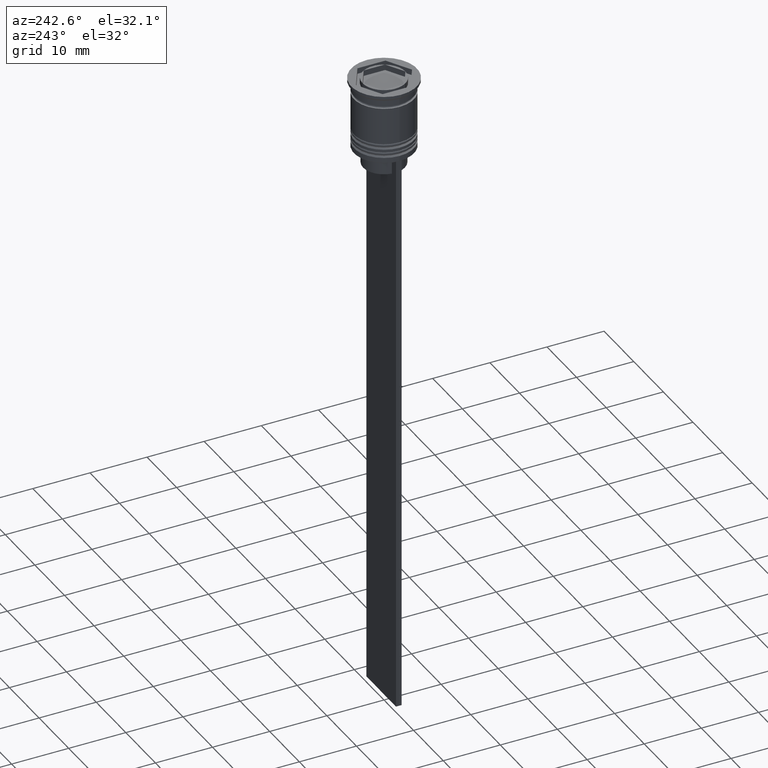
[diagram: clean part render]
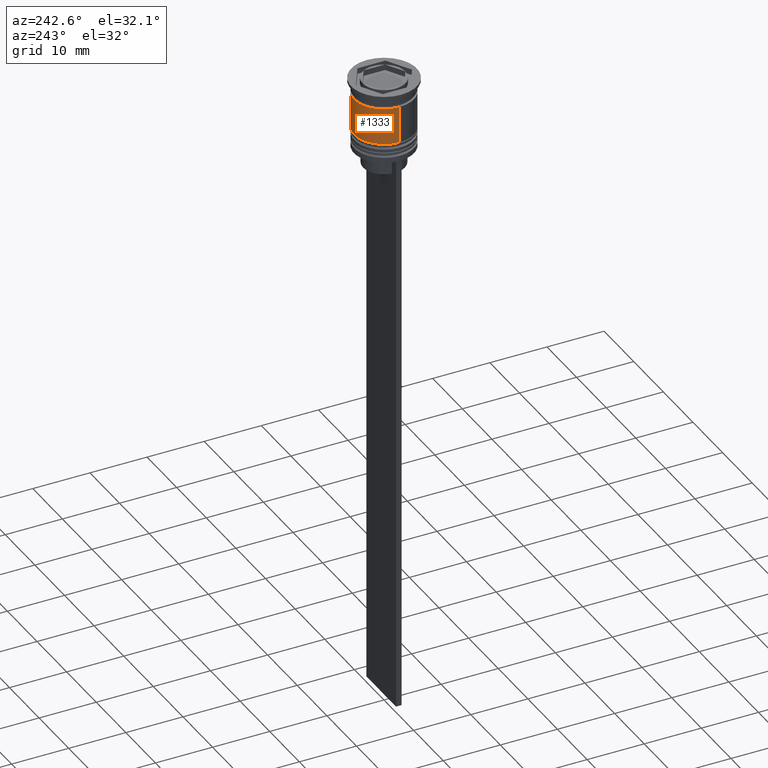
[diagram: same view with one face highlighted and labeled with its STEP entity id]
A machine part, auxiliary view. The second image highlights one B-rep face of the part: STEP entity #1333.
In plain terms, the highlighted cylindrical surface (edge-blend (fillet) strip) has radius 5.25 mm, axis along (-0, -0, 1).
Its self-contained STEP definition (entity closure, byte-faithful):
#67 = CARTESIAN_POINT ( 'NONE',  ( 0.000000000000000000, 0.000000000000000000, -9.000000000000001776 ) ) ;
#84 = VECTOR ( 'NONE', #175, 1000.000000000000000 ) ;
#88 = ORIENTED_EDGE ( 'NONE', *, *, #448, .F. ) ;
#175 = DIRECTION ( 'NONE',  ( -0.000000000000000000, -0.000000000000000000, 1.000000000000000000 ) ) ;
#448 = EDGE_CURVE ( 'NONE', #2085, #1893, #660, .T. ) ;
#492 = DIRECTION ( 'NONE',  ( -0.000000000000000000, -0.000000000000000000, 1.000000000000000000 ) ) ;
#521 = CARTESIAN_POINT ( 'NONE',  ( 0.000000000000000000, 0.000000000000000000, 0.000000000000000000 ) ) ;
#529 = FACE_OUTER_BOUND ( 'NONE', #747, .T. ) ;
#660 = LINE ( 'NONE', #825, #2327 ) ;
#663 = CARTESIAN_POINT ( 'NONE',  ( -5.249999999999999112, 6.429395695523604153E-16, -2.499999999999999556 ) ) ;
#664 = CARTESIAN_POINT ( 'NONE',  ( -5.250000000000000888, 6.429395695523605139E-16, -9.000000000000001776 ) ) ;
#686 = CARTESIAN_POINT ( 'NONE',  ( -5.250000000000000000, 6.429395695523604153E-16, 0.000000000000000000 ) ) ;
#747 = EDGE_LOOP ( 'NONE', ( #1536, #2222, #948, #88 ) ) ;
#825 = CARTESIAN_POINT ( 'NONE',  ( 5.250000000000000000, 0.000000000000000000, 0.000000000000000000 ) ) ;
#948 = ORIENTED_EDGE ( 'NONE', *, *, #1573, .F. ) ;
#992 = CIRCLE ( 'NONE', #1630, 5.250000000000000888 ) ;
#1117 = EDGE_CURVE ( 'NONE', #2085, #1384, #992, .T. ) ;
#1234 = CARTESIAN_POINT ( 'NONE',  ( 5.249999999999999112, 0.000000000000000000, -2.499999999999999556 ) ) ;
#1329 = EDGE_CURVE ( 'NONE', #1384, #1816, #1802, .T. ) ;
#1333 = ADVANCED_FACE ( 'NONE', ( #529 ), #1976, .T. ) ;
#1384 = VERTEX_POINT ( 'NONE', #664 ) ;
#1386 = CARTESIAN_POINT ( 'NONE',  ( 5.250000000000000888, 0.000000000000000000, -9.000000000000001776 ) ) ;
#1416 = DIRECTION ( 'NONE',  ( 1.000000000000000000, 0.000000000000000000, 0.000000000000000000 ) ) ;
#1450 = DIRECTION ( 'NONE',  ( 1.000000000000000000, 0.000000000000000000, 0.000000000000000000 ) ) ;
#1536 = ORIENTED_EDGE ( 'NONE', *, *, #1117, .T. ) ;
#1573 = EDGE_CURVE ( 'NONE', #1893, #1816, #2210, .T. ) ;
#1586 = DIRECTION ( 'NONE',  ( -0.000000000000000000, -0.000000000000000000, 1.000000000000000000 ) ) ;
#1630 = AXIS2_PLACEMENT_3D ( 'NONE', #67, #1840, #1450 ) ;
#1712 = AXIS2_PLACEMENT_3D ( 'NONE', #521, #1586, #1416 ) ;
#1802 = LINE ( 'NONE', #686, #84 ) ;
#1816 = VERTEX_POINT ( 'NONE', #663 ) ;
#1840 = DIRECTION ( 'NONE',  ( -0.000000000000000000, -0.000000000000000000, 1.000000000000000000 ) ) ;
#1893 = VERTEX_POINT ( 'NONE', #1234 ) ;
#1976 = CYLINDRICAL_SURFACE ( 'NONE', #1712, 5.250000000000000000 ) ;
#2031 = DIRECTION ( 'NONE',  ( -0.000000000000000000, -0.000000000000000000, 1.000000000000000000 ) ) ;
#2049 = DIRECTION ( 'NONE',  ( 1.000000000000000000, 0.000000000000000000, 0.000000000000000000 ) ) ;
#2085 = VERTEX_POINT ( 'NONE', #1386 ) ;
#2172 = AXIS2_PLACEMENT_3D ( 'NONE', #2199, #2031, #2049 ) ;
#2199 = CARTESIAN_POINT ( 'NONE',  ( 0.000000000000000000, 0.000000000000000000, -2.499999999999999556 ) ) ;
#2210 = CIRCLE ( 'NONE', #2172, 5.249999999999999112 ) ;
#2222 = ORIENTED_EDGE ( 'NONE', *, *, #1329, .T. ) ;
#2327 = VECTOR ( 'NONE', #492, 1000.000000000000000 ) ;